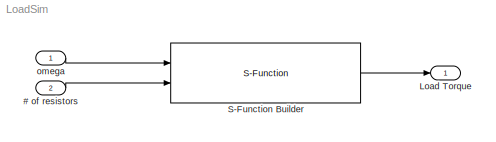
MODEL LoadSim
KIND model
BLOCK [Inport] # of resistors
  IconDisplay = Port number
  LatchInput = off
  Port = 2
BLOCK [Outport] Load Torque
  BusOutputAsStruct = off
  IconDisplay = Port number
BLOCK [S-Function] S-Function Builder
  CopyFcn = set_param(gcbh,'LinkStatus','none')
  FunctionName = LoadSim
  InitFcn = try, set_param(gcb,'FunctionName','LoadSim'), end,
  MaskDisplay = plot(val(:,1),val(:,2)),disp(sys)port_label('input',1,'u0')port_label('input',2,'u1')port_label('output',1,'y0')
  MaskIconFrame = on
  MaskIconOpaque = on
  MaskIconRotate = none
  MaskIconUnits = normalized
  MaskInitialization = val = [[.9  0.75 0.75 1 1 .9 .9 1]',[1 1 0.75 0.75 .9 .9 1 .9]'];try , sys = get_param(gcb,'SfunBuilderFcnName');if isempty(sys), sys = get_param(gcb,'FunctionName'); end,catch, sys = get_param(gcb,'FunctionName'); end
  MaskType = S-Function Builder
  OpenFcn = sfunctionwizard(gcbh)
  Ports = [2, 1]
  PreSaveFcn = try, set_param(gcb,'FunctionName','LoadSim'), end
  SFunctionModules = LoadSim_wrapper
  WizardData = DataTag0
BLOCK [Inport] omega
  IconDisplay = Port number
  LatchInput = off
  Port = 1
LINE # of resistors:1 -> S-Function Builder:2
LINE S-Function Builder:1 -> Load Torque:1
LINE omega:1 -> S-Function Builder:1
